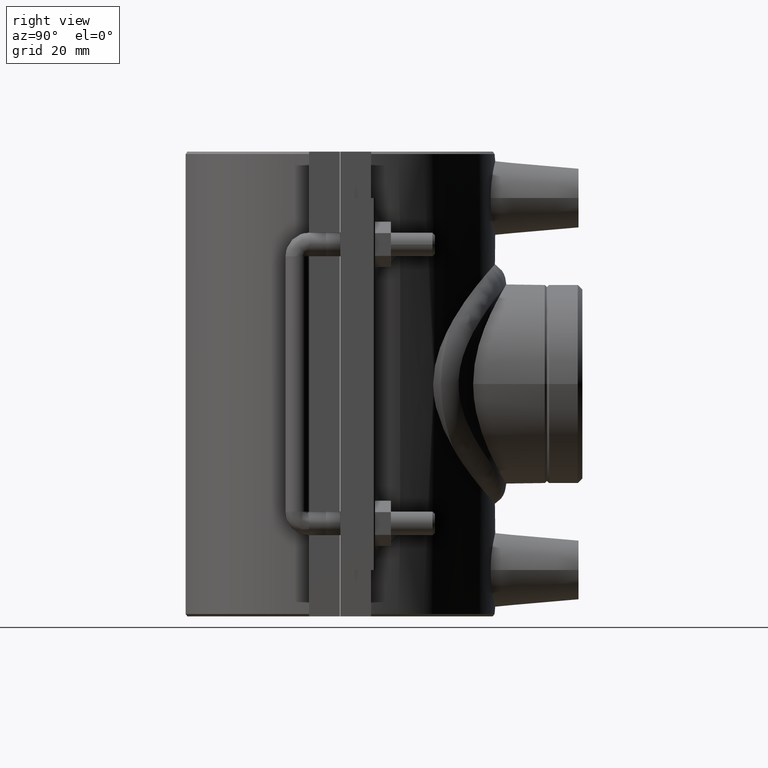
[diagram: clean part render]
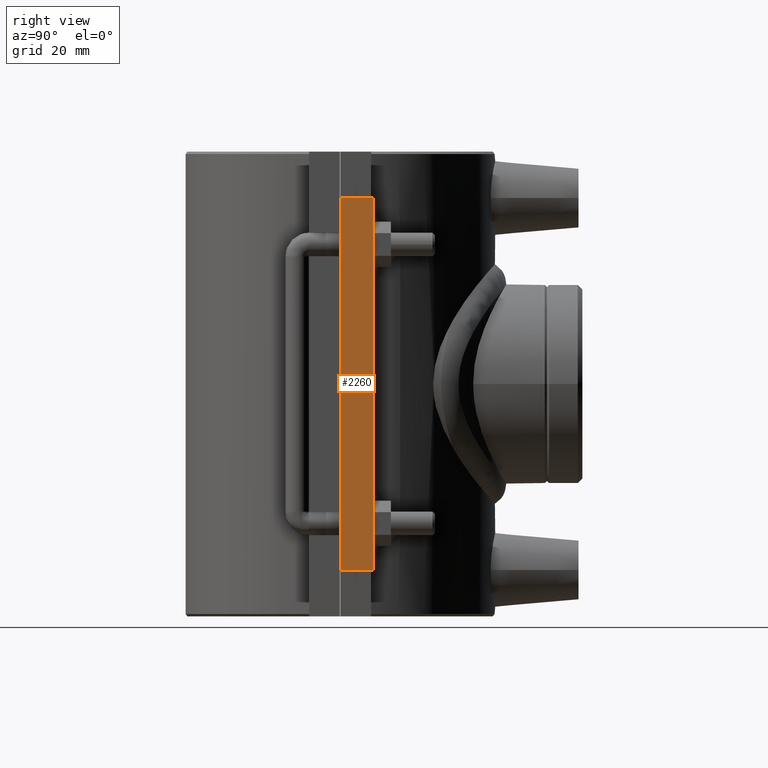
[diagram: same view with one face highlighted and labeled with its STEP entity id]
A machine part, right view. The second image highlights one B-rep face of the part: STEP entity #2260.
In plain terms, the highlighted planar face has unit normal (1, 0, 0).
Its self-contained STEP definition (entity closure, byte-faithful):
#196=FACE_OUTER_BOUND('',#342,.T.);
#342=EDGE_LOOP('',(#1634,#1635,#1636,#1637));
#557=LINE('',#3481,#748);
#576=LINE('',#3557,#767);
#580=LINE('',#3567,#771);
#581=LINE('',#3568,#772);
#748=VECTOR('',#2688,94.4);
#767=VECTOR('',#2717,8.32499999999999);
#771=VECTOR('',#2725,8.32499999999999);
#772=VECTOR('',#2726,94.4);
#1015=VERTEX_POINT('',#3478);
#1016=VERTEX_POINT('',#3480);
#1040=VERTEX_POINT('',#3556);
#1044=VERTEX_POINT('',#3566);
#1251=EDGE_CURVE('',#1015,#1016,#557,.T.);
#1277=EDGE_CURVE('',#1016,#1040,#576,.T.);
#1282=EDGE_CURVE('',#1044,#1015,#580,.T.);
#1283=EDGE_CURVE('',#1040,#1044,#581,.T.);
#1634=ORIENTED_EDGE('',*,*,#1251,.F.);
#1635=ORIENTED_EDGE('',*,*,#1282,.F.);
#1636=ORIENTED_EDGE('',*,*,#1283,.F.);
#1637=ORIENTED_EDGE('',*,*,#1277,.F.);
#2173=PLANE('',#2411);
#2260=ADVANCED_FACE('',(#196),#2173,.T.);
#2411=AXIS2_PLACEMENT_3D('',#3565,#2723,#2724);
#2688=DIRECTION('',(0.,0.,-1.));
#2717=DIRECTION('',(0.,-1.,0.));
#2723=DIRECTION('center_axis',(1.,0.,0.));
#2724=DIRECTION('ref_axis',(0.,1.,0.));
#2725=DIRECTION('',(0.,1.,0.));
#2726=DIRECTION('',(0.,0.,1.));
#3478=CARTESIAN_POINT('',(51.,8.37499999999999,47.2));
#3480=CARTESIAN_POINT('',(51.,8.37499999999999,-47.2));
#3481=CARTESIAN_POINT('',(51.,8.37499999999999,0.));
#3556=CARTESIAN_POINT('',(51.,0.05,-47.2));
#3557=CARTESIAN_POINT('',(51.,0.05,-47.2));
#3565=CARTESIAN_POINT('Origin',(51.,0.0500000000000002,0.));
#3566=CARTESIAN_POINT('',(51.,0.05,47.2));
#3567=CARTESIAN_POINT('',(51.,0.05,47.2));
#3568=CARTESIAN_POINT('',(51.,0.0500000000000002,0.));